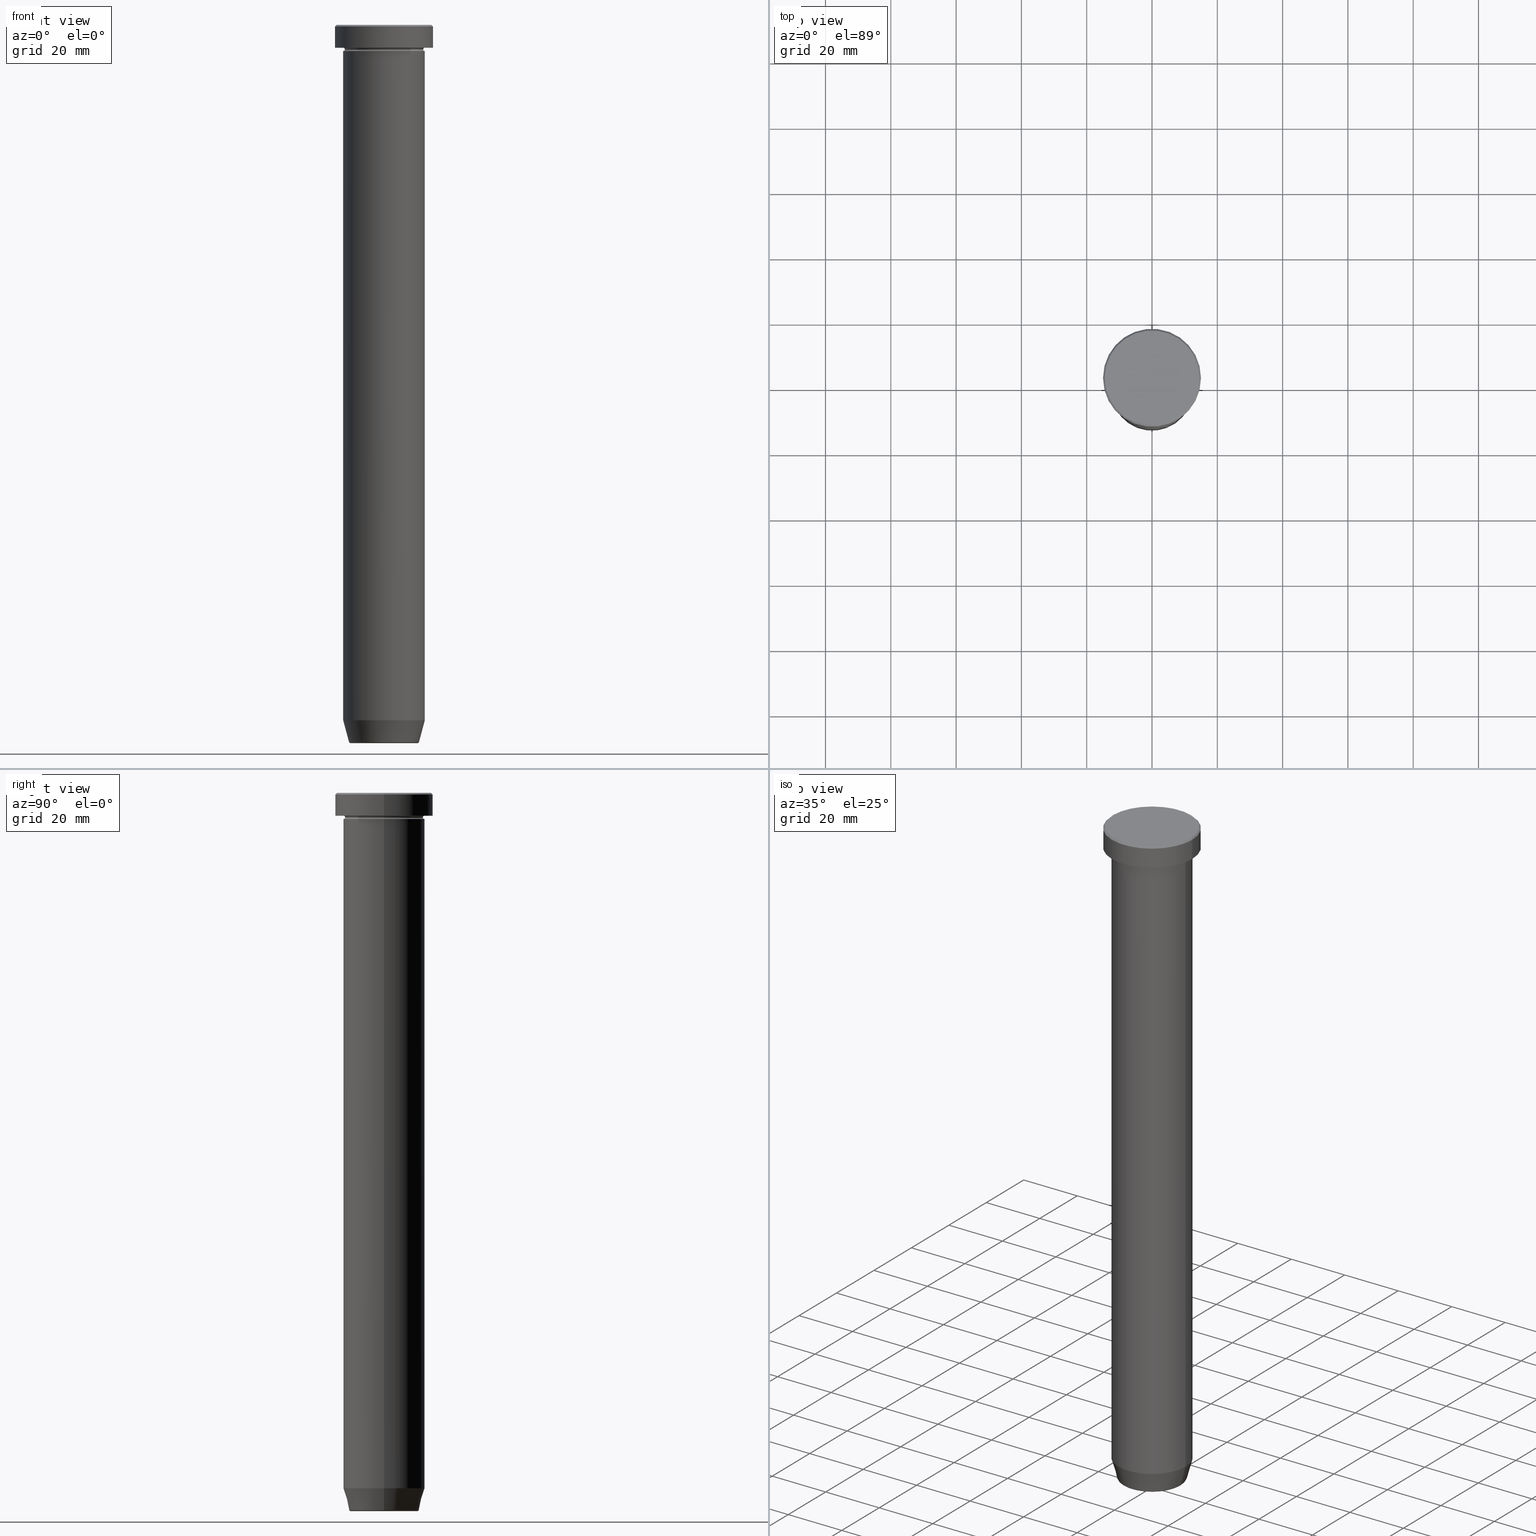
[diagram: canonical four-view strip — front | top / right | iso, engineering-drawing reading convention]
A machine part, canonical four-view strip (front | top / right | iso — engineering-drawing reading convention). The complete STEP part file that produces these views, byte-faithful:
ISO-10303-21;
HEADER;
FILE_DESCRIPTION (( 'STEP AP203' ),
    '1' );
FILE_NAME ('0165.STEP',
    '2024-01-02T20:44:06',
    ( '' ),
    ( '' ),
    'SwSTEP 2.0',
    'SolidWorks 2019',
    '' );
FILE_SCHEMA (( 'CONFIG_CONTROL_DESIGN' ));
ENDSEC;

DATA;
#1 = DIRECTION ( 'NONE',  ( 1.000000000000000000, 0.000000000000000000, 0.000000000000000000 ) ) ;
#2 = AXIS2_PLACEMENT_3D ( 'NONE', #441, #75, #479 ) ;
#3 = CIRCLE ( 'NONE', #422, 12.50000000000000000 ) ;
#4 = DIRECTION ( 'NONE',  ( 1.000000000000000000, 0.000000000000000000, 0.000000000000000000 ) ) ;
#5 = ORIENTED_EDGE ( 'NONE', *, *, #328, .T. ) ;
#6 = UNCERTAINTY_MEASURE_WITH_UNIT (LENGTH_MEASURE( 1.000000000000000082E-05 ), #425, 'distance_accuracy_value', 'NONE');
#7 = ORIENTED_EDGE ( 'NONE', *, *, #513, .F. ) ;
#8 = ADVANCED_FACE ( 'NONE', ( #585 ), #570, .T. ) ;
#9 = DIRECTION ( 'NONE',  ( -1.000000000000000000, 0.000000000000000000, 0.000000000000000000 ) ) ;
#10 = CIRCLE ( 'NONE', #345, 10.24069215899266361 ) ;
#11 = EDGE_CURVE ( 'NONE', #44, #181, #89, .T. ) ;
#12 = ORIENTED_EDGE ( 'NONE', *, *, #447, .T. ) ;
#13 = DIRECTION ( 'NONE',  ( 0.000000000000000000, 0.000000000000000000, -1.000000000000000000 ) ) ;
#14 = PRODUCT_DEFINITION_FORMATION_WITH_SPECIFIED_SOURCE ( 'LIBOVOLN�', '', #176, .NOT_KNOWN. ) ;
#15 = AXIS2_PLACEMENT_3D ( 'NONE', #563, #238, #292 ) ;
#16 = CIRCLE ( 'NONE', #135, 12.50000000000000000 ) ;
#17 = EDGE_CURVE ( 'NONE', #226, #66, #248, .T. ) ;
#18 = DIRECTION ( 'NONE',  ( 1.000000000000000000, 0.000000000000000000, 0.000000000000000000 ) ) ;
#19 = PLANE ( 'NONE',  #558 ) ;
#20 = DIRECTION ( 'NONE',  ( -0.000000000000000000, -0.000000000000000000, 1.000000000000000000 ) ) ;
#21 = DIRECTION ( 'NONE',  ( 1.000000000000000000, 0.000000000000000000, 0.000000000000000000 ) ) ;
#22 = ORIENTED_EDGE ( 'NONE', *, *, #269, .T. ) ;
#23 = CYLINDRICAL_SURFACE ( 'NONE', #285, 12.50000000000000000 ) ;
#24 = CYLINDRICAL_SURFACE ( 'NONE', #266, 15.00000000000000000 ) ;
#25 = CIRCLE ( 'NONE', #466, 12.50000000000000000 ) ;
#26 = ORIENTED_EDGE ( 'NONE', *, *, #51, .F. ) ;
#27 = CARTESIAN_POINT ( 'NONE',  ( 0.000000000000000000, 0.000000000000000000, -219.6294095225512706 ) ) ;
#28 = APPLICATION_PROTOCOL_DEFINITION ( 'international standard', 'config_control_design', 1994, #322 ) ;
#29 = FACE_OUTER_BOUND ( 'NONE', #331, .T. ) ;
#30 = DIRECTION ( 'NONE',  ( 1.000000000000000000, 0.000000000000000000, 0.000000000000000000 ) ) ;
#31 = CALENDAR_DATE ( 2024, 2, 1 ) ;
#32 = EDGE_CURVE ( 'NONE', #133, #340, #263, .T. ) ;
#33 = ORIENTED_EDGE ( 'NONE', *, *, #182, .T. ) ;
#34 = AXIS2_PLACEMENT_3D ( 'NONE', #139, #406, #1 ) ;
#35 = DIRECTION ( 'NONE',  ( 0.000000000000000000, 0.000000000000000000, -1.000000000000000000 ) ) ;
#36 = EDGE_LOOP ( 'NONE', ( #411, #404, #197, #329 ) ) ;
#37 = CARTESIAN_POINT ( 'NONE',  ( 0.000000000000000000, 0.000000000000000000, -7.500000000000000000 ) ) ;
#38 = CIRCLE ( 'NONE', #409, 0.5000000000000004441 ) ;
#39 = TOROIDAL_SURFACE ( 'NONE', #179, 12.50000000000000000, 0.5000000000000000000 ) ;
#40 = VERTEX_POINT ( 'NONE', #555 ) ;
#41 = ADVANCED_BREP_SHAPE_REPRESENTATION ( '0165', ( #153, #374, #77 ), #453 ) ;
#42 = EDGE_CURVE ( 'NONE', #40, #340, #394, .T. ) ;
#43 = ORIENTED_EDGE ( 'NONE', *, *, #470, .F. ) ;
#44 = VERTEX_POINT ( 'NONE', #94 ) ;
#45 = DIRECTION ( 'NONE',  ( 1.000000000000000000, 0.000000000000000000, 0.000000000000000000 ) ) ;
#46 = AXIS2_PLACEMENT_3D ( 'NONE', #559, #284, #9 ) ;
#47 = CIRCLE ( 'NONE', #564, 0.5000000000000004441 ) ;
#48 = ORIENTED_EDGE ( 'NONE', *, *, #182, .F. ) ;
#49 = CARTESIAN_POINT ( 'NONE',  ( 0.000000000000000000, 0.000000000000000000, -220.0000000000000284 ) ) ;
#50 = EDGE_LOOP ( 'NONE', ( #272, #190, #165, #78 ) ) ;
#51 = EDGE_CURVE ( 'NONE', #553, #264, #233, .T. ) ;
#52 = ORIENTED_EDGE ( 'NONE', *, *, #502, .F. ) ;
#53 = CIRCLE ( 'NONE', #187, 10.72365507213718949 ) ;
#54 = AXIS2_PLACEMENT_3D ( 'NONE', #249, #35, #208 ) ;
#55 = EDGE_CURVE ( 'NONE', #264, #439, #360, .T. ) ;
#56 = LINE ( 'NONE', #392, #501 ) ;
#57 = DATE_TIME_ROLE ( 'creation_date' ) ;
#58 = CLOSED_SHELL ( 'NONE', ( #100, #218, #162, #521, #8, #195, #359, #74 ) ) ;
#59 = CARTESIAN_POINT ( 'NONE',  ( 12.50000000000000000, 0.000000000000000000, -50.00000000000000000 ) ) ;
#60 = PRODUCT_DEFINITION ( 'NEZN�M�', '', #14, #417 ) ;
#61 = APPROVAL_ROLE ( '' ) ;
#62 = FACE_OUTER_BOUND ( 'NONE', #231, .T. ) ;
#63 = CARTESIAN_POINT ( 'NONE',  ( 10.24069215899266361, 0.000000000000000000, -220.0000000000000284 ) ) ;
#64 = CARTESIAN_POINT ( 'NONE',  ( 12.50000000000000000, 1.530808498934191521E-15, -6.999999999999999112 ) ) ;
#65 = DIRECTION ( 'NONE',  ( 0.000000000000000000, 0.000000000000000000, -1.000000000000000000 ) ) ;
#66 = VERTEX_POINT ( 'NONE', #270 ) ;
#67 = DATE_AND_TIME ( #112, #276 ) ;
#68 = CARTESIAN_POINT ( 'NONE',  ( -14.50000000000001066, 0.000000000000000000, 0.000000000000000000 ) ) ;
#69 = DIRECTION ( 'NONE',  ( 1.000000000000000000, 0.000000000000000000, 0.000000000000000000 ) ) ;
#70 = DIRECTION ( 'NONE',  ( -1.000000000000000000, 0.000000000000000000, -0.000000000000000000 ) ) ;
#71 = EDGE_LOOP ( 'NONE', ( #295, #599, #499, #281 ) ) ;
#72 = DIRECTION ( 'NONE',  ( -1.000000000000000000, -1.224646799147353454E-16, 0.000000000000000000 ) ) ;
#73 = AXIS2_PLACEMENT_3D ( 'NONE', #575, #158, #524 ) ;
#74 = ADVANCED_FACE ( 'NONE', ( #449 ), #130, .T. ) ;
#75 = DIRECTION ( 'NONE',  ( 0.000000000000000000, -1.000000000000000000, 0.000000000000000000 ) ) ;
#76 = DIRECTION ( 'NONE',  ( -0.000000000000000000, -0.000000000000000000, 1.000000000000000000 ) ) ;
#77 = AXIS2_PLACEMENT_3D ( 'NONE', #583, #84, #442 ) ;
#78 = ORIENTED_EDGE ( 'NONE', *, *, #186, .F. ) ;
#79 = DIRECTION ( 'NONE',  ( -0.000000000000000000, -0.000000000000000000, 1.000000000000000000 ) ) ;
#80 = VECTOR ( 'NONE', #224, 1000.000000000000000 ) ;
#81 = FACE_OUTER_BOUND ( 'NONE', #71, .T. ) ;
#82 = COORDINATED_UNIVERSAL_TIME_OFFSET ( 1, 0, .AHEAD. ) ;
#83 = EDGE_CURVE ( 'NONE', #226, #505, #461, .T. ) ;
#84 = DIRECTION ( 'NONE',  ( 0.000000000000000000, 0.000000000000000000, 1.000000000000000000 ) ) ;
#85 = LOCAL_TIME ( 21, 44, 6.000000000000000000, #385 ) ;
#86 = FACE_OUTER_BOUND ( 'NONE', #254, .T. ) ;
#87 = CARTESIAN_POINT ( 'NONE',  ( 0.000000000000000000, 0.000000000000000000, -50.00000000000000000 ) ) ;
#88 = VECTOR ( 'NONE', #230, 1000.000000000000000 ) ;
#89 = CIRCLE ( 'NONE', #420, 12.50000000000000000 ) ;
#90 = FACE_OUTER_BOUND ( 'NONE', #36, .T. ) ;
#91 = SECURITY_CLASSIFICATION ( '', '', #302 ) ;
#92 = AXIS2_PLACEMENT_3D ( 'NONE', #410, #593, #4 ) ;
#93 = ADVANCED_FACE ( 'NONE', ( #90 ), #274, .T. ) ;
#94 = CARTESIAN_POINT ( 'NONE',  ( -12.50000000000000000, 0.000000000000000000, -6.999999999999999112 ) ) ;
#95 = CONICAL_SURFACE ( 'NONE', #512, 10.62435565298213902, 0.2617993877991495744 ) ;
#96 = CIRCLE ( 'NONE', #157, 10.24069215899266361 ) ;
#97 = ORIENTED_EDGE ( 'NONE', *, *, #42, .T. ) ;
#98 = APPROVAL_ROLE ( '' ) ;
#99 = AXIS2_PLACEMENT_3D ( 'NONE', #504, #459, #313 ) ;
#100 = ADVANCED_FACE ( 'NONE', ( #369 ), #123, .T. ) ;
#101 = CC_DESIGN_SECURITY_CLASSIFICATION ( #91, ( #14 ) ) ;
#102 = VECTOR ( 'NONE', #569, 1000.000000000000000 ) ;
#103 = CIRCLE ( 'NONE', #438, 12.00000000000000000 ) ;
#104 = PERSON ( 'NEUR�EN�', 'NEUR�EN�', 'NEUR�EN�', ('NEUR�EN�'), ('NEUR�EN�'), ('NEUR�EN�') ) ;
#105 = CARTESIAN_POINT ( 'NONE',  ( 0.000000000000000000, 0.000000000000000000, 0.000000000000000000 ) ) ;
#106 = EDGE_CURVE ( 'NONE', #446, #431, #455, .T. ) ;
#107 = CC_DESIGN_APPROVAL ( #273, ( #91 ) ) ;
#108 = FACE_OUTER_BOUND ( 'NONE', #275, .T. ) ;
#109 = CARTESIAN_POINT ( 'NONE',  ( 0.000000000000000000, 0.000000000000000000, -220.0000000000000284 ) ) ;
#110 = LINE ( 'NONE', #437, #327 ) ;
#111 = ORIENTED_EDGE ( 'NONE', *, *, #414, .F. ) ;
#112 = CALENDAR_DATE ( 2024, 2, 1 ) ;
#113 = CARTESIAN_POINT ( 'NONE',  ( 12.50000000000000000, 1.530808498934191521E-15, -7.500000000000000000 ) ) ;
#114 = PLANE ( 'NONE',  #380 ) ;
#115 = AXIS2_PLACEMENT_3D ( 'NONE', #552, #546, #279 ) ;
#116 = AXIS2_PLACEMENT_3D ( 'NONE', #87, #136, #184 ) ;
#117 = ORIENTED_EDGE ( 'NONE', *, *, #335, .T. ) ;
#118 = CARTESIAN_POINT ( 'NONE',  ( 12.50000000000000000, 0.000000000000000000, 0.000000000000000000 ) ) ;
#119 = EDGE_CURVE ( 'NONE', #456, #301, #10, .T. ) ;
#120 = CARTESIAN_POINT ( 'NONE',  ( 0.000000000000000000, 0.000000000000000000, 0.000000000000000000 ) ) ;
#121 = VERTEX_POINT ( 'NONE', #59 ) ;
#122 = LOCAL_TIME ( 21, 44, 6.000000000000000000, #283 ) ;
#123 = TOROIDAL_SURFACE ( 'NONE', #115, 10.24069215899266361, 0.5000000000000000000 ) ;
#124 = VECTOR ( 'NONE', #589, 1000.000000000000000 ) ;
#125 = FACE_OUTER_BOUND ( 'NONE', #50, .T. ) ;
#126 = DIRECTION ( 'NONE',  ( 0.000000000000000000, 0.000000000000000000, -1.000000000000000000 ) ) ;
#127 = EDGE_LOOP ( 'NONE', ( #314, #595 ) ) ;
#128 = CC_DESIGN_PERSON_AND_ORGANIZATION_ASSIGNMENT ( #413, #376, ( #60 ) ) ;
#129 = CARTESIAN_POINT ( 'NONE',  ( 10.72365507213718949, 0.000000000000000000, -219.6294095225512706 ) ) ;
#130 = TOROIDAL_SURFACE ( 'NONE', #597, 10.24069215899266361, 0.5000000000000000000 ) ;
#131 = ORIENTED_EDGE ( 'NONE', *, *, #140, .F. ) ;
#132 = DATE_AND_TIME ( #566, #178 ) ;
#133 = VERTEX_POINT ( 'NONE', #375 ) ;
#134 = CIRCLE ( 'NONE', #2, 0.5000000000000004441 ) ;
#135 = AXIS2_PLACEMENT_3D ( 'NONE', #174, #309, #361 ) ;
#136 = DIRECTION ( 'NONE',  ( -0.000000000000000000, -0.000000000000000000, 1.000000000000000000 ) ) ;
#137 = ORIENTED_EDGE ( 'NONE', *, *, #550, .F. ) ;
#138 = DATE_AND_TIME ( #407, #372 ) ;
#139 = CARTESIAN_POINT ( 'NONE',  ( 0.000000000000000000, 0.000000000000000000, -0.4999999999999831246 ) ) ;
#140 = EDGE_CURVE ( 'NONE', #163, #226, #56, .T. ) ;
#141 = CARTESIAN_POINT ( 'NONE',  ( 0.000000000000000000, 0.000000000000000000, -213.0000000000000284 ) ) ;
#142 = CC_DESIGN_PERSON_AND_ORGANIZATION_ASSIGNMENT ( #486, #578, ( #91 ) ) ;
#143 = DIRECTION ( 'NONE',  ( -0.000000000000000000, -0.000000000000000000, 1.000000000000000000 ) ) ;
#144 = AXIS2_PLACEMENT_3D ( 'NONE', #27, #20, #572 ) ;
#145 = ADVANCED_FACE ( 'NONE', ( #29 ), #24, .T. ) ;
#146 = EDGE_LOOP ( 'NONE', ( #498, #344, #333, #423 ) ) ;
#147 = PERSON_AND_ORGANIZATION ( #104, #334 ) ;
#148 = PLANE ( 'NONE',  #278 ) ;
#149 = ORIENTED_EDGE ( 'NONE', *, *, #119, .F. ) ;
#150 = CARTESIAN_POINT ( 'NONE',  ( 0.000000000000000000, 2.081899558550500990E-14, -220.0000000000000284 ) ) ;
#151 = ADVANCED_FACE ( 'NONE', ( #481 ), #207, .T. ) ;
#152 =( NAMED_UNIT ( * ) PLANE_ANGLE_UNIT ( ) SI_UNIT ( $, .RADIAN. ) );
#153 = MANIFOLD_SOLID_BREP ( 'Zkosen�1', #545 ) ;
#154 = EDGE_LOOP ( 'NONE', ( #169, #561, #565, #457 ) ) ;
#155 = FACE_OUTER_BOUND ( 'NONE', #271, .T. ) ;
#156 = CARTESIAN_POINT ( 'NONE',  ( -12.00000000000000000, 1.500192328955507734E-15, -7.500000000000000000 ) ) ;
#157 = AXIS2_PLACEMENT_3D ( 'NONE', #543, #400, #312 ) ;
#158 = DIRECTION ( 'NONE',  ( -0.000000000000000000, -0.000000000000000000, 1.000000000000000000 ) ) ;
#159 = DIRECTION ( 'NONE',  ( 1.000000000000000000, 0.000000000000000000, 0.000000000000000000 ) ) ;
#160 = DIRECTION ( 'NONE',  ( -0.000000000000000000, -0.000000000000000000, 1.000000000000000000 ) ) ;
#161 = DATE_AND_TIME ( #31, #85 ) ;
#162 = ADVANCED_FACE ( 'NONE', ( #337 ), #201, .T. ) ;
#163 = VERTEX_POINT ( 'NONE', #213 ) ;
#164 = DIRECTION ( 'NONE',  ( 1.000000000000000000, 0.000000000000000000, 0.000000000000000000 ) ) ;
#165 = ORIENTED_EDGE ( 'NONE', *, *, #590, .F. ) ;
#166 = MECHANICAL_CONTEXT ( 'NONE', #322, 'mechanical' ) ;
#167 = CYLINDRICAL_SURFACE ( 'NONE', #236, 15.00000000000000000 ) ;
#168 = DIRECTION ( 'NONE',  ( -0.000000000000000000, -0.000000000000000000, 1.000000000000000000 ) ) ;
#169 = ORIENTED_EDGE ( 'NONE', *, *, #480, .F. ) ;
#170 = CARTESIAN_POINT ( 'NONE',  ( 0.000000000000000000, 0.000000000000000000, 0.000000000000000000 ) ) ;
#171 = AXIS2_PLACEMENT_3D ( 'NONE', #37, #253, #211 ) ;
#172 = APPROVAL_DATE_TIME ( #161, #273 ) ;
#173 = EDGE_LOOP ( 'NONE', ( #395, #215, #117, #490 ) ) ;
#174 = CARTESIAN_POINT ( 'NONE',  ( 0.000000000000000000, 0.000000000000000000, -213.0000000000000284 ) ) ;
#175 = ORIENTED_EDGE ( 'NONE', *, *, #42, .F. ) ;
#176 = PRODUCT ( '0165', '0165', '', ( #166 ) ) ;
#177 = ORIENTED_EDGE ( 'NONE', *, *, #458, .T. ) ;
#178 = LOCAL_TIME ( 21, 44, 6.000000000000000000, #383 ) ;
#179 = AXIS2_PLACEMENT_3D ( 'NONE', #287, #573, #468 ) ;
#180 = CARTESIAN_POINT ( 'NONE',  ( 0.000000000000000000, 0.000000000000000000, -219.5000000000000284 ) ) ;
#181 = VERTEX_POINT ( 'NONE', #64 ) ;
#182 = EDGE_CURVE ( 'NONE', #133, #581, #484, .T. ) ;
#183 = EDGE_LOOP ( 'NONE', ( #515, #485, #175, #482 ) ) ;
#184 = DIRECTION ( 'NONE',  ( 1.000000000000000000, 0.000000000000000000, 0.000000000000000000 ) ) ;
#185 = EDGE_LOOP ( 'NONE', ( #149, #177, #511, #7 ) ) ;
#186 = EDGE_CURVE ( 'NONE', #571, #505, #471, .T. ) ;
#187 = AXIS2_PLACEMENT_3D ( 'NONE', #205, #401, #355 ) ;
#188 = AXIS2_PLACEMENT_3D ( 'NONE', #416, #338, #30 ) ;
#189 = APPROVAL_DATE_TIME ( #234, #232 ) ;
#190 = ORIENTED_EDGE ( 'NONE', *, *, #140, .T. ) ;
#191 = DIRECTION ( 'NONE',  ( -0.000000000000000000, -0.000000000000000000, 1.000000000000000000 ) ) ;
#192 = DIRECTION ( 'NONE',  ( 0.000000000000000000, 0.000000000000000000, -1.000000000000000000 ) ) ;
#193 = CONICAL_SURFACE ( 'NONE', #289, 14.50000000000001066, 0.7853981633974533860 ) ;
#194 = VECTOR ( 'NONE', #356, 1000.000000000000000 ) ;
#195 = ADVANCED_FACE ( 'NONE', ( #62 ), #277, .T. ) ;
#196 = DIRECTION ( 'NONE',  ( 0.000000000000000000, -0.000000000000000000, 1.000000000000000000 ) ) ;
#197 = ORIENTED_EDGE ( 'NONE', *, *, #390, .F. ) ;
#198 = DIRECTION ( 'NONE',  ( -0.2588190451025209060, 3.169619151431766790E-17, 0.9659258262890682012 ) ) ;
#199 = DIRECTION ( 'NONE',  ( 1.000000000000000000, 0.000000000000000000, 0.000000000000000000 ) ) ;
#200 = ADVANCED_FACE ( 'NONE', ( #426 ), #167, .T. ) ;
#201 = CYLINDRICAL_SURFACE ( 'NONE', #219, 12.50000000000000000 ) ;
#202 = APPROVAL_ROLE ( '' ) ;
#203 = EDGE_LOOP ( 'NONE', ( #26, #111 ) ) ;
#204 = APPROVAL_STATUS ( 'not_yet_approved' ) ;
#205 = CARTESIAN_POINT ( 'NONE',  ( 0.000000000000000000, 0.000000000000000000, -219.6294095225512706 ) ) ;
#206 =( NAMED_UNIT ( * ) SI_UNIT ( $, .STERADIAN. ) SOLID_ANGLE_UNIT ( ) );
#207 = PLANE ( 'NONE',  #497 ) ;
#208 = DIRECTION ( 'NONE',  ( -1.000000000000000000, 0.000000000000000000, -0.000000000000000000 ) ) ;
#209 = EDGE_LOOP ( 'NONE', ( #12, #357 ) ) ;
#210 = DIRECTION ( 'NONE',  ( -0.000000000000000000, -0.000000000000000000, 1.000000000000000000 ) ) ;
#211 = DIRECTION ( 'NONE',  ( 1.000000000000000000, 0.000000000000000000, 0.000000000000000000 ) ) ;
#212 = ORIENTED_EDGE ( 'NONE', *, *, #470, .T. ) ;
#213 = CARTESIAN_POINT ( 'NONE',  ( -10.72365507213718949, 1.422038742429750318E-15, -219.6294095225512706 ) ) ;
#214 = CARTESIAN_POINT ( 'NONE',  ( 0.000000000000000000, 0.000000000000000000, 0.000000000000000000 ) ) ;
#215 = ORIENTED_EDGE ( 'NONE', *, *, #414, .T. ) ;
#216 = DIRECTION ( 'NONE',  ( -1.000000000000000000, 0.000000000000000000, 0.000000000000000000 ) ) ;
#217 = CC_DESIGN_APPROVAL ( #363, ( #14 ) ) ;
#218 = ADVANCED_FACE ( 'NONE', ( #125 ), #95, .T. ) ;
#219 = AXIS2_PLACEMENT_3D ( 'NONE', #120, #436, #69 ) ;
#220 = DIRECTION ( 'NONE',  ( -0.000000000000000000, -0.000000000000000000, 1.000000000000000000 ) ) ;
#221 = ORIENTED_EDGE ( 'NONE', *, *, #106, .F. ) ;
#222 = CARTESIAN_POINT ( 'NONE',  ( -10.24069215899266361, 1.283696036640843164E-15, -220.0000000000000284 ) ) ;
#223 = CC_DESIGN_DATE_AND_TIME_ASSIGNMENT ( #67, #265, ( #91 ) ) ;
#224 = DIRECTION ( 'NONE',  ( -0.000000000000000000, -0.000000000000000000, 1.000000000000000000 ) ) ;
#225 = EDGE_CURVE ( 'NONE', #324, #439, #228, .T. ) ;
#226 = VERTEX_POINT ( 'NONE', #293 ) ;
#227 = CC_DESIGN_APPROVAL ( #232, ( #60 ) ) ;
#228 = CIRCLE ( 'NONE', #574, 0.5000000000000004441 ) ;
#229 = ORIENTED_EDGE ( 'NONE', *, *, #32, .T. ) ;
#230 = DIRECTION ( 'NONE',  ( -0.000000000000000000, -0.000000000000000000, 1.000000000000000000 ) ) ;
#231 = EDGE_LOOP ( 'NONE', ( #131, #547, #592, #577 ) ) ;
#232 = APPROVAL ( #330, 'NEUR�EN�' ) ;
#233 = CIRCLE ( 'NONE', #116, 12.50000000000000000 ) ;
#234 = DATE_AND_TIME ( #464, #122 ) ;
#235 = APPROVAL_PERSON_ORGANIZATION ( #147, #363, #61 ) ;
#236 = AXIS2_PLACEMENT_3D ( 'NONE', #244, #534, #342 ) ;
#237 = CIRCLE ( 'NONE', #188, 14.50000000000001066 ) ;
#238 = DIRECTION ( 'NONE',  ( -0.000000000000000000, -0.000000000000000000, 1.000000000000000000 ) ) ;
#239 = VECTOR ( 'NONE', #143, 1000.000000000000000 ) ;
#240 = EDGE_CURVE ( 'NONE', #581, #133, #506, .T. ) ;
#241 = TOROIDAL_SURFACE ( 'NONE', #387, 12.50000000000000000, 0.5000000000000000000 ) ;
#242 = DIRECTION ( 'NONE',  ( 1.000000000000000000, 0.000000000000000000, 0.000000000000000000 ) ) ;
#243 = EDGE_CURVE ( 'NONE', #66, #121, #398, .T. ) ;
#244 = CARTESIAN_POINT ( 'NONE',  ( 0.000000000000000000, 0.000000000000000000, 0.000000000000000000 ) ) ;
#245 = CARTESIAN_POINT ( 'NONE',  ( 0.000000000000000000, 0.000000000000000000, -6.999999999999999112 ) ) ;
#246 = ORIENTED_EDGE ( 'NONE', *, *, #286, .F. ) ;
#247 = DIRECTION ( 'NONE',  ( -0.000000000000000000, -0.000000000000000000, 1.000000000000000000 ) ) ;
#248 = LINE ( 'NONE', #408, #80 ) ;
#249 = CARTESIAN_POINT ( 'NONE',  ( 0.000000000000000000, 12.50000000000000000, -50.00000000000000000 ) ) ;
#250 = EDGE_LOOP ( 'NONE', ( #388, #221, #5, #43 ) ) ;
#251 = TOROIDAL_SURFACE ( 'NONE', #373, 12.50000000000000000, 0.5000000000000000000 ) ;
#252 = CARTESIAN_POINT ( 'NONE',  ( 0.000000000000000000, 0.000000000000000000, -6.999999999999999112 ) ) ;
#253 = DIRECTION ( 'NONE',  ( -0.000000000000000000, -0.000000000000000000, 1.000000000000000000 ) ) ;
#254 = EDGE_LOOP ( 'NONE', ( #368, #22, #522, #308 ) ) ;
#255 = DIRECTION ( 'NONE',  ( -0.000000000000000000, -0.000000000000000000, 1.000000000000000000 ) ) ;
#256 = PERSON_AND_ORGANIZATION ( #104, #334 ) ;
#257 = ADVANCED_FACE ( 'NONE', ( #81 ), #251, .F. ) ;
#258 = PLANE ( 'NONE',  #54 ) ;
#259 = ORIENTED_EDGE ( 'NONE', *, *, #435, .T. ) ;
#260 = PERSON_AND_ORGANIZATION_ROLE ( 'creator' ) ;
#261 = CARTESIAN_POINT ( 'NONE',  ( 0.000000000000000000, 0.000000000000000000, -7.500000000000000000 ) ) ;
#262 = CARTESIAN_POINT ( 'NONE',  ( 0.000000000000000000, 0.000000000000000000, -0.4999999999999831246 ) ) ;
#263 = LINE ( 'NONE', #320, #239 ) ;
#264 = VERTEX_POINT ( 'NONE', #268 ) ;
#265 = DATE_TIME_ROLE ( 'classification_date' ) ;
#266 = AXIS2_PLACEMENT_3D ( 'NONE', #105, #384, #529 ) ;
#267 = AXIS2_PLACEMENT_3D ( 'NONE', #525, #475, #65 ) ;
#268 = CARTESIAN_POINT ( 'NONE',  ( -12.50000000000000000, 1.530808498934191521E-15, -50.00000000000000000 ) ) ;
#269 = EDGE_CURVE ( 'NONE', #353, #181, #38, .T. ) ;
#270 = CARTESIAN_POINT ( 'NONE',  ( -12.50000000000000000, 1.530808498934191521E-15, -50.00000000000000000 ) ) ;
#271 = EDGE_LOOP ( 'NONE', ( #48, #418 ) ) ;
#272 = ORIENTED_EDGE ( 'NONE', *, *, #315, .T. ) ;
#273 = APPROVAL ( #204, 'NEUR�EN�' ) ;
#274 = CYLINDRICAL_SURFACE ( 'NONE', #92, 12.50000000000000000 ) ;
#275 = EDGE_LOOP ( 'NONE', ( #538, #137, #542, #532 ) ) ;
#276 = LOCAL_TIME ( 21, 44, 6.000000000000000000, #82 ) ;
#277 = CONICAL_SURFACE ( 'NONE', #465, 10.62435565298213902, 0.2617993877991495744 ) ;
#278 = AXIS2_PLACEMENT_3D ( 'NONE', #307, #526, #70 ) ;
#279 = DIRECTION ( 'NONE',  ( 1.000000000000000000, 0.000000000000000000, 0.000000000000000000 ) ) ;
#280 = FACE_OUTER_BOUND ( 'NONE', #183, .T. ) ;
#281 = ORIENTED_EDGE ( 'NONE', *, *, #435, .F. ) ;
#282 = ORIENTED_EDGE ( 'NONE', *, *, #447, .F. ) ;
#283 = COORDINATED_UNIVERSAL_TIME_OFFSET ( 1, 0, .AHEAD. ) ;
#284 = DIRECTION ( 'NONE',  ( 0.000000000000000000, 0.000000000000000000, -1.000000000000000000 ) ) ;
#285 = AXIS2_PLACEMENT_3D ( 'NONE', #170, #539, #389 ) ;
#286 = EDGE_CURVE ( 'NONE', #163, #571, #53, .T. ) ;
#287 = CARTESIAN_POINT ( 'NONE',  ( 0.000000000000000000, 0.000000000000000000, -7.500000000000000000 ) ) ;
#288 = DIRECTION ( 'NONE',  ( 1.000000000000000000, 0.000000000000000000, 0.000000000000000000 ) ) ;
#289 = AXIS2_PLACEMENT_3D ( 'NONE', #516, #433, #478 ) ;
#290 = ADVANCED_FACE ( 'NONE', ( #108 ), #241, .F. ) ;
#291 = CIRCLE ( 'NONE', #318, 15.00000000000000000 ) ;
#292 = DIRECTION ( 'NONE',  ( 1.000000000000000000, 0.000000000000000000, 0.000000000000000000 ) ) ;
#293 = CARTESIAN_POINT ( 'NONE',  ( -12.50000000000000000, 1.530808498934191521E-15, -213.0000000000000284 ) ) ;
#294 = CARTESIAN_POINT ( 'NONE',  ( 12.50000000000000000, 0.000000000000000000, -213.0000000000000284 ) ) ;
#295 = ORIENTED_EDGE ( 'NONE', *, *, #269, .F. ) ;
#296 = ORIENTED_EDGE ( 'NONE', *, *, #424, .T. ) ;
#297 = CARTESIAN_POINT ( 'NONE',  ( 0.000000000000000000, 0.000000000000000000, -6.999999999999999112 ) ) ;
#298 = CARTESIAN_POINT ( 'NONE',  ( 10.62435565298213902, 0.000000000000000000, -220.0000000000000284 ) ) ;
#299 = CARTESIAN_POINT ( 'NONE',  ( 0.000000000000000000, 0.000000000000000000, -8.000000000000000000 ) ) ;
#300 = CONICAL_SURFACE ( 'NONE', #46, 14.50000000000001066, 0.7853981633974533860 ) ;
#301 = VERTEX_POINT ( 'NONE', #63 ) ;
#302 = SECURITY_CLASSIFICATION_LEVEL ( 'unclassified' ) ;
#303 = DIRECTION ( 'NONE',  ( -0.000000000000000000, -0.000000000000000000, 1.000000000000000000 ) ) ;
#304 = AXIS2_PLACEMENT_3D ( 'NONE', #393, #535, #126 ) ;
#305 = CIRCLE ( 'NONE', #354, 12.50000000000000000 ) ;
#306 = EDGE_CURVE ( 'NONE', #353, #527, #134, .T. ) ;
#307 = CARTESIAN_POINT ( 'NONE',  ( 0.000000000000000000, 0.000000000000000000, -50.00000000000000000 ) ) ;
#308 = ORIENTED_EDGE ( 'NONE', *, *, #510, .F. ) ;
#309 = DIRECTION ( 'NONE',  ( -0.000000000000000000, -0.000000000000000000, 1.000000000000000000 ) ) ;
#310 = AXIS2_PLACEMENT_3D ( 'NONE', #214, #520, #476 ) ;
#311 = PERSON_AND_ORGANIZATION ( #104, #334 ) ;
#312 = DIRECTION ( 'NONE',  ( 1.000000000000000000, 0.000000000000000000, 0.000000000000000000 ) ) ;
#313 = DIRECTION ( 'NONE',  ( 1.000000000000000000, 0.000000000000000000, 0.000000000000000000 ) ) ;
#314 = ORIENTED_EDGE ( 'NONE', *, *, #106, .T. ) ;
#315 = EDGE_CURVE ( 'NONE', #571, #163, #591, .T. ) ;
#316 = DIRECTION ( 'NONE',  ( -1.000000000000000000, 1.224646799147353454E-16, 0.000000000000000000 ) ) ;
#317 = AXIS2_PLACEMENT_3D ( 'NONE', #474, #428, #21 ) ;
#318 = AXIS2_PLACEMENT_3D ( 'NONE', #262, #530, #159 ) ;
#319 = PRODUCT_DEFINITION_SHAPE ( 'NONE', 'NONE',  #60 ) ;
#320 = CARTESIAN_POINT ( 'NONE',  ( 15.00000000000000000, 0.000000000000000000, 0.000000000000000000 ) ) ;
#321 = PRODUCT_RELATED_PRODUCT_CATEGORY ( 'detail', '', ( #176 ) ) ;
#322 = APPLICATION_CONTEXT ( 'configuration controlled 3d designs of mechanical parts and assemblies' ) ;
#323 = DIRECTION ( 'NONE',  ( 1.000000000000000000, 0.000000000000000000, 0.000000000000000000 ) ) ;
#324 = VERTEX_POINT ( 'NONE', #156 ) ;
#325 = ORIENTED_EDGE ( 'NONE', *, *, #240, .T. ) ;
#326 = APPLICATION_PROTOCOL_DEFINITION ( 'international standard', 'config_control_design', 1994, #403 ) ;
#327 = VECTOR ( 'NONE', #444, 1000.000000000000000 ) ;
#328 = EDGE_CURVE ( 'NONE', #446, #40, #448, .T. ) ;
#329 = ORIENTED_EDGE ( 'NONE', *, *, #335, .F. ) ;
#330 = APPROVAL_STATUS ( 'not_yet_approved' ) ;
#331 = EDGE_LOOP ( 'NONE', ( #52, #325, #229, #212 ) ) ;
#332 = ADVANCED_FACE ( 'NONE', ( #434 ), #23, .T. ) ;
#333 = ORIENTED_EDGE ( 'NONE', *, *, #562, .T. ) ;
#334 = ORGANIZATION ( 'NEUR�EN�', 'NEUR�EN�', '' ) ;
#335 = EDGE_CURVE ( 'NONE', #553, #527, #346, .T. ) ;
#336 = DIRECTION ( 'NONE',  ( 1.000000000000000000, 0.000000000000000000, 0.000000000000000000 ) ) ;
#337 = FACE_OUTER_BOUND ( 'NONE', #371, .T. ) ;
#338 = DIRECTION ( 'NONE',  ( -0.000000000000000000, -0.000000000000000000, 1.000000000000000000 ) ) ;
#339 = CC_DESIGN_PERSON_AND_ORGANIZATION_ASSIGNMENT ( #533, #260, ( #14 ) ) ;
#340 = VERTEX_POINT ( 'NONE', #507 ) ;
#341 = FACE_BOUND ( 'NONE', #460, .T. ) ;
#342 = DIRECTION ( 'NONE',  ( 1.000000000000000000, 0.000000000000000000, 0.000000000000000000 ) ) ;
#343 = SHAPE_DEFINITION_REPRESENTATION ( #319, #41 ) ;
#344 = ORIENTED_EDGE ( 'NONE', *, *, #83, .T. ) ;
#345 = AXIS2_PLACEMENT_3D ( 'NONE', #49, #192, #469 ) ;
#346 = LINE ( 'NONE', #118, #549 ) ;
#347 = DIRECTION ( 'NONE',  ( 1.000000000000000000, 0.000000000000000000, 0.000000000000000000 ) ) ;
#348 = ORIENTED_EDGE ( 'NONE', *, *, #243, .T. ) ;
#349 = ADVANCED_FACE ( 'NONE', ( #280 ), #300, .T. ) ;
#350 = APPROVAL_PERSON_ORGANIZATION ( #509, #232, #98 ) ;
#351 = DIRECTION ( 'NONE',  ( 1.000000000000000000, 0.000000000000000000, 0.000000000000000000 ) ) ;
#352 = TOROIDAL_SURFACE ( 'NONE', #421, 12.50000000000000000, 0.5000000000000000000 ) ;
#353 = VERTEX_POINT ( 'NONE', #544 ) ;
#354 = AXIS2_PLACEMENT_3D ( 'NONE', #297, #396, #216 ) ;
#355 = DIRECTION ( 'NONE',  ( -1.000000000000000000, 0.000000000000000000, 0.000000000000000000 ) ) ;
#356 = DIRECTION ( 'NONE',  ( -0.000000000000000000, -0.000000000000000000, 1.000000000000000000 ) ) ;
#357 = ORIENTED_EDGE ( 'NONE', *, *, #119, .T. ) ;
#358 = DIRECTION ( 'NONE',  ( 0.000000000000000000, 0.000000000000000000, -1.000000000000000000 ) ) ;
#359 = ADVANCED_FACE ( 'NONE', ( #540 ), #114, .F. ) ;
#360 = LINE ( 'NONE', #367, #88 ) ;
#361 = DIRECTION ( 'NONE',  ( 1.000000000000000000, 0.000000000000000000, 0.000000000000000000 ) ) ;
#362 = ORIENTED_EDGE ( 'NONE', *, *, #17, .T. ) ;
#363 = APPROVAL ( #382, 'NEUR�EN�' ) ;
#364 = ORIENTED_EDGE ( 'NONE', *, *, #11, .T. ) ;
#365 = COORDINATED_UNIVERSAL_TIME_OFFSET ( 1, 0, .AHEAD. ) ;
#366 = CARTESIAN_POINT ( 'NONE',  ( 0.000000000000000000, 0.000000000000000000, -7.500000000000000000 ) ) ;
#367 = CARTESIAN_POINT ( 'NONE',  ( -12.50000000000000000, 1.530808498934191521E-15, 0.000000000000000000 ) ) ;
#368 = ORIENTED_EDGE ( 'NONE', *, *, #480, .T. ) ;
#369 = FACE_OUTER_BOUND ( 'NONE', #185, .T. ) ;
#370 = EDGE_CURVE ( 'NONE', #431, #340, #386, .T. ) ;
#371 = EDGE_LOOP ( 'NONE', ( #477, #362, #451, #462 ) ) ;
#372 = LOCAL_TIME ( 21, 44, 6.000000000000000000, #365 ) ;
#373 = AXIS2_PLACEMENT_3D ( 'NONE', #366, #358, #517 ) ;
#374 = MANIFOLD_SOLID_BREP ( 'Zaoblit4', #58 ) ;
#375 = CARTESIAN_POINT ( 'NONE',  ( 15.00000000000000000, 0.000000000000000000, -6.999999999999999112 ) ) ;
#376 = PERSON_AND_ORGANIZATION_ROLE ( 'creator' ) ;
#377 = ADVANCED_FACE ( 'NONE', ( #567 ), #193, .T. ) ;
#378 = DIRECTION ( 'NONE',  ( -1.000000000000000000, 0.000000000000000000, -0.000000000000000000 ) ) ;
#379 = APPROVAL_PERSON_ORGANIZATION ( #432, #273, #202 ) ;
#380 = AXIS2_PLACEMENT_3D ( 'NONE', #150, #196, #336 ) ;
#381 = CIRCLE ( 'NONE', #267, 0.5000000000000004441 ) ;
#382 = APPROVAL_STATUS ( 'not_yet_approved' ) ;
#383 = COORDINATED_UNIVERSAL_TIME_OFFSET ( 1, 0, .AHEAD. ) ;
#384 = DIRECTION ( 'NONE',  ( -0.000000000000000000, -0.000000000000000000, 1.000000000000000000 ) ) ;
#385 = COORDINATED_UNIVERSAL_TIME_OFFSET ( 1, 0, .AHEAD. ) ;
#386 = LINE ( 'NONE', #560, #557 ) ;
#387 = AXIS2_PLACEMENT_3D ( 'NONE', #261, #255, #473 ) ;
#388 = ORIENTED_EDGE ( 'NONE', *, *, #370, .F. ) ;
#389 = DIRECTION ( 'NONE',  ( 1.000000000000000000, 0.000000000000000000, 0.000000000000000000 ) ) ;
#390 = EDGE_CURVE ( 'NONE', #527, #439, #536, .T. ) ;
#391 = ORIENTED_EDGE ( 'NONE', *, *, #502, .T. ) ;
#392 = CARTESIAN_POINT ( 'NONE',  ( -10.62435565298213902, 1.301108314342766318E-15, -220.0000000000000284 ) ) ;
#393 = CARTESIAN_POINT ( 'NONE',  ( -12.50000000000000000, 0.000000000000000000, -7.500000000000000000 ) ) ;
#394 = CIRCLE ( 'NONE', #34, 15.00000000000000000 ) ;
#395 = ORIENTED_EDGE ( 'NONE', *, *, #55, .F. ) ;
#396 = DIRECTION ( 'NONE',  ( -0.000000000000000000, -0.000000000000000000, 1.000000000000000000 ) ) ;
#397 = DIRECTION ( 'NONE',  ( -1.000000000000000000, 1.224646799147353454E-16, 0.000000000000000000 ) ) ;
#398 = CIRCLE ( 'NONE', #73, 12.50000000000000000 ) ;
#399 = EDGE_LOOP ( 'NONE', ( #33, #391, #97, #556 ) ) ;
#400 = DIRECTION ( 'NONE',  ( 0.000000000000000000, 0.000000000000000000, -1.000000000000000000 ) ) ;
#401 = DIRECTION ( 'NONE',  ( -0.000000000000000000, -0.000000000000000000, 1.000000000000000000 ) ) ;
#402 = ADVANCED_FACE ( 'NONE', ( #472 ), #352, .F. ) ;
#403 = APPLICATION_CONTEXT ( 'configuration controlled 3d designs of mechanical parts and assemblies' ) ;
#404 = ORIENTED_EDGE ( 'NONE', *, *, #55, .T. ) ;
#405 = CARTESIAN_POINT ( 'NONE',  ( -10.24069215899266361, 1.254123087356376227E-15, -219.5000000000000284 ) ) ;
#406 = DIRECTION ( 'NONE',  ( 0.000000000000000000, 0.000000000000000000, -1.000000000000000000 ) ) ;
#407 = CALENDAR_DATE ( 2024, 2, 1 ) ;
#408 = CARTESIAN_POINT ( 'NONE',  ( -12.50000000000000000, 1.530808498934191521E-15, 0.000000000000000000 ) ) ;
#409 = AXIS2_PLACEMENT_3D ( 'NONE', #113, #483, #72 ) ;
#410 = CARTESIAN_POINT ( 'NONE',  ( 0.000000000000000000, 0.000000000000000000, 0.000000000000000000 ) ) ;
#411 = ORIENTED_EDGE ( 'NONE', *, *, #51, .T. ) ;
#412 = ADVANCED_FACE ( 'NONE', ( #341, #155 ), #19, .T. ) ;
#413 = PERSON_AND_ORGANIZATION ( #104, #334 ) ;
#414 = EDGE_CURVE ( 'NONE', #264, #553, #519, .T. ) ;
#415 = AXIS2_PLACEMENT_3D ( 'NONE', #514, #303, #440 ) ;
#416 = CARTESIAN_POINT ( 'NONE',  ( 0.000000000000000000, 0.000000000000000000, 0.000000000000000000 ) ) ;
#417 = DESIGN_CONTEXT ( 'detailed design', #403, 'design' ) ;
#418 = ORIENTED_EDGE ( 'NONE', *, *, #240, .F. ) ;
#419 = AXIS2_PLACEMENT_3D ( 'NONE', #141, #551, #323 ) ;
#420 = AXIS2_PLACEMENT_3D ( 'NONE', #245, #160, #430 ) ;
#421 = AXIS2_PLACEMENT_3D ( 'NONE', #427, #191, #199 ) ;
#422 = AXIS2_PLACEMENT_3D ( 'NONE', #299, #594, #351 ) ;
#423 = ORIENTED_EDGE ( 'NONE', *, *, #243, .F. ) ;
#424 = EDGE_CURVE ( 'NONE', #121, #66, #25, .T. ) ;
#425 =( LENGTH_UNIT ( ) NAMED_UNIT ( * ) SI_UNIT ( .MILLI., .METRE. ) );
#426 = FACE_OUTER_BOUND ( 'NONE', #399, .T. ) ;
#427 = CARTESIAN_POINT ( 'NONE',  ( 0.000000000000000000, 0.000000000000000000, -7.500000000000000000 ) ) ;
#428 = DIRECTION ( 'NONE',  ( -0.000000000000000000, -0.000000000000000000, 1.000000000000000000 ) ) ;
#429 = FACE_OUTER_BOUND ( 'NONE', #587, .T. ) ;
#430 = DIRECTION ( 'NONE',  ( -1.000000000000000000, 0.000000000000000000, 0.000000000000000000 ) ) ;
#431 = VERTEX_POINT ( 'NONE', #452 ) ;
#432 = PERSON_AND_ORGANIZATION ( #104, #334 ) ;
#433 = DIRECTION ( 'NONE',  ( 0.000000000000000000, 0.000000000000000000, -1.000000000000000000 ) ) ;
#434 = FACE_OUTER_BOUND ( 'NONE', #173, .T. ) ;
#435 = EDGE_CURVE ( 'NONE', #181, #44, #305, .T. ) ;
#436 = DIRECTION ( 'NONE',  ( -0.000000000000000000, -0.000000000000000000, 1.000000000000000000 ) ) ;
#437 = CARTESIAN_POINT ( 'NONE',  ( -15.00000000000000000, 1.836970198721029589E-15, 0.000000000000000000 ) ) ;
#438 = AXIS2_PLACEMENT_3D ( 'NONE', #580, #168, #164 ) ;
#439 = VERTEX_POINT ( 'NONE', #548 ) ;
#440 = DIRECTION ( 'NONE',  ( 1.000000000000000000, 0.000000000000000000, 0.000000000000000000 ) ) ;
#441 = CARTESIAN_POINT ( 'NONE',  ( 12.50000000000000000, 0.000000000000000000, -7.500000000000000000 ) ) ;
#442 = DIRECTION ( 'NONE',  ( 1.000000000000000000, 0.000000000000000000, 0.000000000000000000 ) ) ;
#443 = DIRECTION ( 'NONE',  ( -0.000000000000000000, -0.000000000000000000, 1.000000000000000000 ) ) ;
#444 = DIRECTION ( 'NONE',  ( -0.000000000000000000, -0.000000000000000000, 1.000000000000000000 ) ) ;
#445 = DIRECTION ( 'NONE',  ( 1.224646799147353207E-16, 1.000000000000000000, 0.000000000000000000 ) ) ;
#446 = VERTEX_POINT ( 'NONE', #588 ) ;
#447 = EDGE_CURVE ( 'NONE', #301, #456, #96, .T. ) ;
#448 = LINE ( 'NONE', #68, #124 ) ;
#449 = FACE_OUTER_BOUND ( 'NONE', #494, .T. ) ;
#450 = AXIS2_PLACEMENT_3D ( 'NONE', #252, #247, #288 ) ;
#451 = ORIENTED_EDGE ( 'NONE', *, *, #424, .F. ) ;
#452 = CARTESIAN_POINT ( 'NONE',  ( 14.50000000000001066, 1.806354028742346591E-15, 0.000000000000000000 ) ) ;
#453 =( GEOMETRIC_REPRESENTATION_CONTEXT ( 3 ) GLOBAL_UNCERTAINTY_ASSIGNED_CONTEXT ( ( #6 ) ) GLOBAL_UNIT_ASSIGNED_CONTEXT ( ( #425, #152, #206 ) ) REPRESENTATION_CONTEXT ( 'NONE', 'WORKASPACE' ) );
#454 = CC_DESIGN_PERSON_AND_ORGANIZATION_ASSIGNMENT ( #311, #495, ( #14 ) ) ;
#455 = CIRCLE ( 'NONE', #99, 14.50000000000001066 ) ;
#456 = VERTEX_POINT ( 'NONE', #222 ) ;
#457 = ORIENTED_EDGE ( 'NONE', *, *, #306, .F. ) ;
#458 = EDGE_CURVE ( 'NONE', #456, #163, #47, .T. ) ;
#459 = DIRECTION ( 'NONE',  ( -0.000000000000000000, -0.000000000000000000, 1.000000000000000000 ) ) ;
#460 = EDGE_LOOP ( 'NONE', ( #364, #259 ) ) ;
#461 = CIRCLE ( 'NONE', #419, 12.50000000000000000 ) ;
#462 = ORIENTED_EDGE ( 'NONE', *, *, #562, .F. ) ;
#463 = EDGE_CURVE ( 'NONE', #431, #446, #237, .T. ) ;
#464 = CALENDAR_DATE ( 2024, 2, 1 ) ;
#465 = AXIS2_PLACEMENT_3D ( 'NONE', #109, #443, #242 ) ;
#466 = AXIS2_PLACEMENT_3D ( 'NONE', #487, #79, #528 ) ;
#467 = DIRECTION ( 'NONE',  ( 0.7071067811865512365, 8.659560562354979697E-17, -0.7071067811865439090 ) ) ;
#468 = DIRECTION ( 'NONE',  ( -1.000000000000000000, 0.000000000000000000, 0.000000000000000000 ) ) ;
#469 = DIRECTION ( 'NONE',  ( 1.000000000000000000, 0.000000000000000000, 0.000000000000000000 ) ) ;
#470 = EDGE_CURVE ( 'NONE', #340, #40, #291, .T. ) ;
#471 = LINE ( 'NONE', #298, #102 ) ;
#472 = FACE_OUTER_BOUND ( 'NONE', #154, .T. ) ;
#473 = DIRECTION ( 'NONE',  ( 1.000000000000000000, 0.000000000000000000, 0.000000000000000000 ) ) ;
#474 = CARTESIAN_POINT ( 'NONE',  ( 0.000000000000000000, 0.000000000000000000, -6.999999999999999112 ) ) ;
#475 = DIRECTION ( 'NONE',  ( 0.000000000000000000, -1.000000000000000000, 0.000000000000000000 ) ) ;
#476 = DIRECTION ( 'NONE',  ( 1.000000000000000000, 0.000000000000000000, 0.000000000000000000 ) ) ;
#477 = ORIENTED_EDGE ( 'NONE', *, *, #590, .T. ) ;
#478 = DIRECTION ( 'NONE',  ( -1.000000000000000000, 0.000000000000000000, 0.000000000000000000 ) ) ;
#479 = DIRECTION ( 'NONE',  ( 0.000000000000000000, 0.000000000000000000, -1.000000000000000000 ) ) ;
#480 = EDGE_CURVE ( 'NONE', #324, #353, #508, .T. ) ;
#481 = FACE_OUTER_BOUND ( 'NONE', #127, .T. ) ;
#482 = ORIENTED_EDGE ( 'NONE', *, *, #328, .F. ) ;
#483 = DIRECTION ( 'NONE',  ( -1.224646799147353207E-16, 1.000000000000000000, 0.000000000000000000 ) ) ;
#484 = CIRCLE ( 'NONE', #450, 15.00000000000000000 ) ;
#485 = ORIENTED_EDGE ( 'NONE', *, *, #370, .T. ) ;
#486 = PERSON_AND_ORGANIZATION ( #104, #334 ) ;
#487 = CARTESIAN_POINT ( 'NONE',  ( 0.000000000000000000, 0.000000000000000000, -50.00000000000000000 ) ) ;
#488 = CARTESIAN_POINT ( 'NONE',  ( 0.000000000000000000, 0.000000000000000000, -220.0000000000000284 ) ) ;
#489 = CARTESIAN_POINT ( 'NONE',  ( 12.50000000000000000, 0.000000000000000000, 0.000000000000000000 ) ) ;
#490 = ORIENTED_EDGE ( 'NONE', *, *, #554, .F. ) ;
#491 = PERSON_AND_ORGANIZATION_ROLE ( 'design_owner' ) ;
#492 = CC_DESIGN_PERSON_AND_ORGANIZATION_ASSIGNMENT ( #256, #491, ( #176 ) ) ;
#493 = CARTESIAN_POINT ( 'NONE',  ( -15.00000000000000000, 1.836970198721029589E-15, -6.999999999999999112 ) ) ;
#494 = EDGE_LOOP ( 'NONE', ( #503, #282, #500, #246 ) ) ;
#495 = PERSON_AND_ORGANIZATION_ROLE ( 'design_supplier' ) ;
#496 = CARTESIAN_POINT ( 'NONE',  ( 12.50000000000000000, 0.000000000000000000, -8.000000000000000000 ) ) ;
#497 = AXIS2_PLACEMENT_3D ( 'NONE', #579, #584, #347 ) ;
#498 = ORIENTED_EDGE ( 'NONE', *, *, #17, .F. ) ;
#499 = ORIENTED_EDGE ( 'NONE', *, *, #510, .T. ) ;
#500 = ORIENTED_EDGE ( 'NONE', *, *, #513, .T. ) ;
#501 = VECTOR ( 'NONE', #198, 1000.000000000000000 ) ;
#502 = EDGE_CURVE ( 'NONE', #581, #40, #110, .T. ) ;
#503 = ORIENTED_EDGE ( 'NONE', *, *, #458, .F. ) ;
#504 = CARTESIAN_POINT ( 'NONE',  ( 0.000000000000000000, 0.000000000000000000, 0.000000000000000000 ) ) ;
#505 = VERTEX_POINT ( 'NONE', #294 ) ;
#506 = CIRCLE ( 'NONE', #317, 15.00000000000000000 ) ;
#507 = CARTESIAN_POINT ( 'NONE',  ( 15.00000000000000000, 0.000000000000000000, -0.4999999999999831246 ) ) ;
#508 = CIRCLE ( 'NONE', #171, 12.00000000000000000 ) ;
#509 = PERSON_AND_ORGANIZATION ( #104, #334 ) ;
#510 = EDGE_CURVE ( 'NONE', #324, #44, #576, .T. ) ;
#511 = ORIENTED_EDGE ( 'NONE', *, *, #315, .F. ) ;
#512 = AXIS2_PLACEMENT_3D ( 'NONE', #488, #76, #18 ) ;
#513 = EDGE_CURVE ( 'NONE', #301, #571, #381, .T. ) ;
#514 = CARTESIAN_POINT ( 'NONE',  ( 0.000000000000000000, 0.000000000000000000, -50.00000000000000000 ) ) ;
#515 = ORIENTED_EDGE ( 'NONE', *, *, #463, .F. ) ;
#516 = CARTESIAN_POINT ( 'NONE',  ( 0.000000000000000000, 0.000000000000000000, 0.000000000000000000 ) ) ;
#517 = DIRECTION ( 'NONE',  ( -1.000000000000000000, 0.000000000000000000, 0.000000000000000000 ) ) ;
#518 = CARTESIAN_POINT ( 'NONE',  ( -12.50000000000000000, 1.530808498934191521E-15, -7.500000000000000000 ) ) ;
#519 = CIRCLE ( 'NONE', #415, 12.50000000000000000 ) ;
#520 = DIRECTION ( 'NONE',  ( -0.000000000000000000, -0.000000000000000000, 1.000000000000000000 ) ) ;
#521 = ADVANCED_FACE ( 'NONE', ( #429 ), #148, .F. ) ;
#522 = ORIENTED_EDGE ( 'NONE', *, *, #11, .F. ) ;
#523 = CARTESIAN_POINT ( 'NONE',  ( 0.000000000000000000, 15.00000000000000000, -6.999999999999999112 ) ) ;
#524 = DIRECTION ( 'NONE',  ( 1.000000000000000000, 0.000000000000000000, 0.000000000000000000 ) ) ;
#525 = CARTESIAN_POINT ( 'NONE',  ( 10.24069215899266361, 0.000000000000000000, -219.5000000000000284 ) ) ;
#526 = DIRECTION ( 'NONE',  ( 0.000000000000000000, 0.000000000000000000, -1.000000000000000000 ) ) ;
#527 = VERTEX_POINT ( 'NONE', #496 ) ;
#528 = DIRECTION ( 'NONE',  ( 1.000000000000000000, 0.000000000000000000, 0.000000000000000000 ) ) ;
#529 = DIRECTION ( 'NONE',  ( 1.000000000000000000, 0.000000000000000000, 0.000000000000000000 ) ) ;
#530 = DIRECTION ( 'NONE',  ( 0.000000000000000000, 0.000000000000000000, -1.000000000000000000 ) ) ;
#531 = CARTESIAN_POINT ( 'NONE',  ( 12.50000000000000000, 0.000000000000000000, -50.00000000000000000 ) ) ;
#532 = ORIENTED_EDGE ( 'NONE', *, *, #390, .T. ) ;
#533 = PERSON_AND_ORGANIZATION ( #104, #334 ) ;
#534 = DIRECTION ( 'NONE',  ( -0.000000000000000000, -0.000000000000000000, 1.000000000000000000 ) ) ;
#535 = DIRECTION ( 'NONE',  ( -0.000000000000000000, -1.000000000000000000, -0.000000000000000000 ) ) ;
#536 = CIRCLE ( 'NONE', #15, 12.50000000000000000 ) ;
#537 = LINE ( 'NONE', #489, #194 ) ;
#538 = ORIENTED_EDGE ( 'NONE', *, *, #225, .F. ) ;
#539 = DIRECTION ( 'NONE',  ( -0.000000000000000000, -0.000000000000000000, 1.000000000000000000 ) ) ;
#540 = FACE_OUTER_BOUND ( 'NONE', #209, .T. ) ;
#541 = ADVANCED_FACE ( 'NONE', ( #586 ), #258, .T. ) ;
#542 = ORIENTED_EDGE ( 'NONE', *, *, #306, .T. ) ;
#543 = CARTESIAN_POINT ( 'NONE',  ( 0.000000000000000000, 0.000000000000000000, -220.0000000000000284 ) ) ;
#544 = CARTESIAN_POINT ( 'NONE',  ( 12.00000000000000000, 0.000000000000000000, -7.500000000000000000 ) ) ;
#545 = CLOSED_SHELL ( 'NONE', ( #349, #598, #402, #93, #200, #541, #151, #145, #412, #332, #290, #257, #377 ) ) ;
#546 = DIRECTION ( 'NONE',  ( -0.000000000000000000, -0.000000000000000000, 1.000000000000000000 ) ) ;
#547 = ORIENTED_EDGE ( 'NONE', *, *, #286, .T. ) ;
#548 = CARTESIAN_POINT ( 'NONE',  ( -12.50000000000000000, 1.530808498934191521E-15, -8.000000000000000000 ) ) ;
#549 = VECTOR ( 'NONE', #210, 1000.000000000000000 ) ;
#550 = EDGE_CURVE ( 'NONE', #353, #324, #103, .T. ) ;
#551 = DIRECTION ( 'NONE',  ( -0.000000000000000000, -0.000000000000000000, 1.000000000000000000 ) ) ;
#552 = CARTESIAN_POINT ( 'NONE',  ( 0.000000000000000000, 0.000000000000000000, -219.5000000000000284 ) ) ;
#553 = VERTEX_POINT ( 'NONE', #531 ) ;
#554 = EDGE_CURVE ( 'NONE', #439, #527, #3, .T. ) ;
#555 = CARTESIAN_POINT ( 'NONE',  ( -15.00000000000000000, 1.836970198721029589E-15, -0.4999999999999831246 ) ) ;
#556 = ORIENTED_EDGE ( 'NONE', *, *, #32, .F. ) ;
#557 = VECTOR ( 'NONE', #467, 1000.000000000000000 ) ;
#558 = AXIS2_PLACEMENT_3D ( 'NONE', #523, #13, #378 ) ;
#559 = CARTESIAN_POINT ( 'NONE',  ( 0.000000000000000000, 0.000000000000000000, 0.000000000000000000 ) ) ;
#560 = CARTESIAN_POINT ( 'NONE',  ( 14.50000000000001066, 1.775737858763663593E-15, 0.000000000000000000 ) ) ;
#561 = ORIENTED_EDGE ( 'NONE', *, *, #225, .T. ) ;
#562 = EDGE_CURVE ( 'NONE', #505, #121, #537, .T. ) ;
#563 = CARTESIAN_POINT ( 'NONE',  ( 0.000000000000000000, 0.000000000000000000, -8.000000000000000000 ) ) ;
#564 = AXIS2_PLACEMENT_3D ( 'NONE', #405, #596, #316 ) ;
#565 = ORIENTED_EDGE ( 'NONE', *, *, #554, .T. ) ;
#566 = CALENDAR_DATE ( 2024, 2, 1 ) ;
#567 = FACE_OUTER_BOUND ( 'NONE', #250, .T. ) ;
#568 = CC_DESIGN_DATE_AND_TIME_ASSIGNMENT ( #138, #57, ( #60 ) ) ;
#569 = DIRECTION ( 'NONE',  ( 0.2588190451025209060, 0.000000000000000000, 0.9659258262890682012 ) ) ;
#570 = CYLINDRICAL_SURFACE ( 'NONE', #310, 12.50000000000000000 ) ;
#571 = VERTEX_POINT ( 'NONE', #129 ) ;
#572 = DIRECTION ( 'NONE',  ( -1.000000000000000000, 0.000000000000000000, 0.000000000000000000 ) ) ;
#573 = DIRECTION ( 'NONE',  ( 0.000000000000000000, 0.000000000000000000, -1.000000000000000000 ) ) ;
#574 = AXIS2_PLACEMENT_3D ( 'NONE', #518, #445, #397 ) ;
#575 = CARTESIAN_POINT ( 'NONE',  ( 0.000000000000000000, 0.000000000000000000, -50.00000000000000000 ) ) ;
#576 = CIRCLE ( 'NONE', #304, 0.5000000000000004441 ) ;
#577 = ORIENTED_EDGE ( 'NONE', *, *, #83, .F. ) ;
#578 = PERSON_AND_ORGANIZATION_ROLE ( 'classification_officer' ) ;
#579 = CARTESIAN_POINT ( 'NONE',  ( 0.000000000000000000, 0.000000000000000000, 0.000000000000000000 ) ) ;
#580 = CARTESIAN_POINT ( 'NONE',  ( 0.000000000000000000, 0.000000000000000000, -7.500000000000000000 ) ) ;
#581 = VERTEX_POINT ( 'NONE', #493 ) ;
#582 = APPROVAL_DATE_TIME ( #132, #363 ) ;
#583 = CARTESIAN_POINT ( 'NONE',  ( 0.000000000000000000, 0.000000000000000000, 0.000000000000000000 ) ) ;
#584 = DIRECTION ( 'NONE',  ( 0.000000000000000000, -0.000000000000000000, 1.000000000000000000 ) ) ;
#585 = FACE_OUTER_BOUND ( 'NONE', #146, .T. ) ;
#586 = FACE_OUTER_BOUND ( 'NONE', #203, .T. ) ;
#587 = EDGE_LOOP ( 'NONE', ( #296, #348 ) ) ;
#588 = CARTESIAN_POINT ( 'NONE',  ( -14.50000000000001066, 0.000000000000000000, 0.000000000000000000 ) ) ;
#589 = DIRECTION ( 'NONE',  ( -0.7071067811865512365, 0.000000000000000000, -0.7071067811865439090 ) ) ;
#590 = EDGE_CURVE ( 'NONE', #505, #226, #16, .T. ) ;
#591 = CIRCLE ( 'NONE', #144, 10.72365507213718949 ) ;
#592 = ORIENTED_EDGE ( 'NONE', *, *, #186, .T. ) ;
#593 = DIRECTION ( 'NONE',  ( -0.000000000000000000, -0.000000000000000000, 1.000000000000000000 ) ) ;
#594 = DIRECTION ( 'NONE',  ( -0.000000000000000000, -0.000000000000000000, 1.000000000000000000 ) ) ;
#595 = ORIENTED_EDGE ( 'NONE', *, *, #463, .T. ) ;
#596 = DIRECTION ( 'NONE',  ( 1.224646799147353207E-16, 1.000000000000000000, 0.000000000000000000 ) ) ;
#597 = AXIS2_PLACEMENT_3D ( 'NONE', #180, #220, #45 ) ;
#598 = ADVANCED_FACE ( 'NONE', ( #86 ), #39, .F. ) ;
#599 = ORIENTED_EDGE ( 'NONE', *, *, #550, .T. ) ;
ENDSEC;
END-ISO-10303-21;
